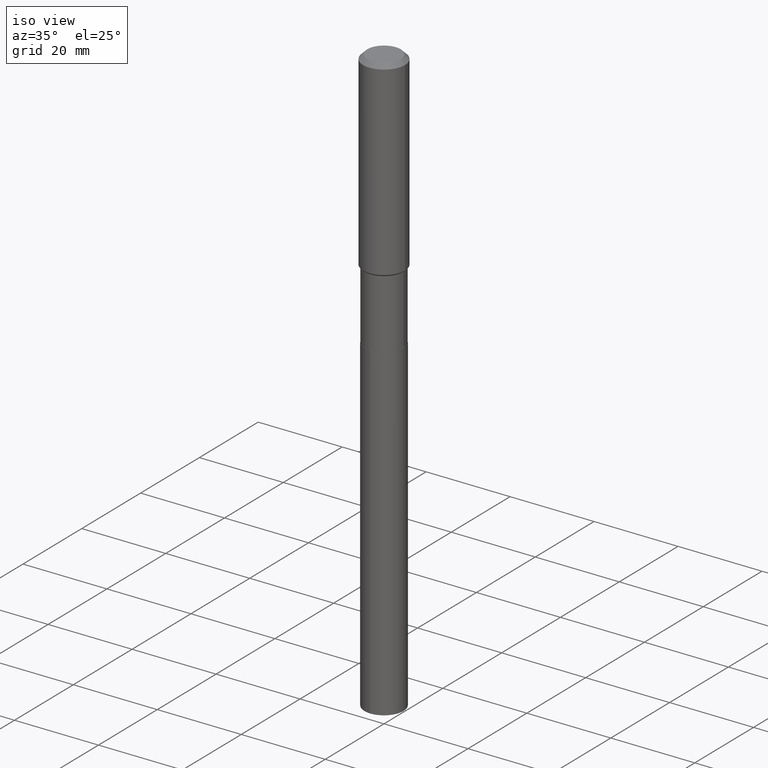
[diagram: clean part render]
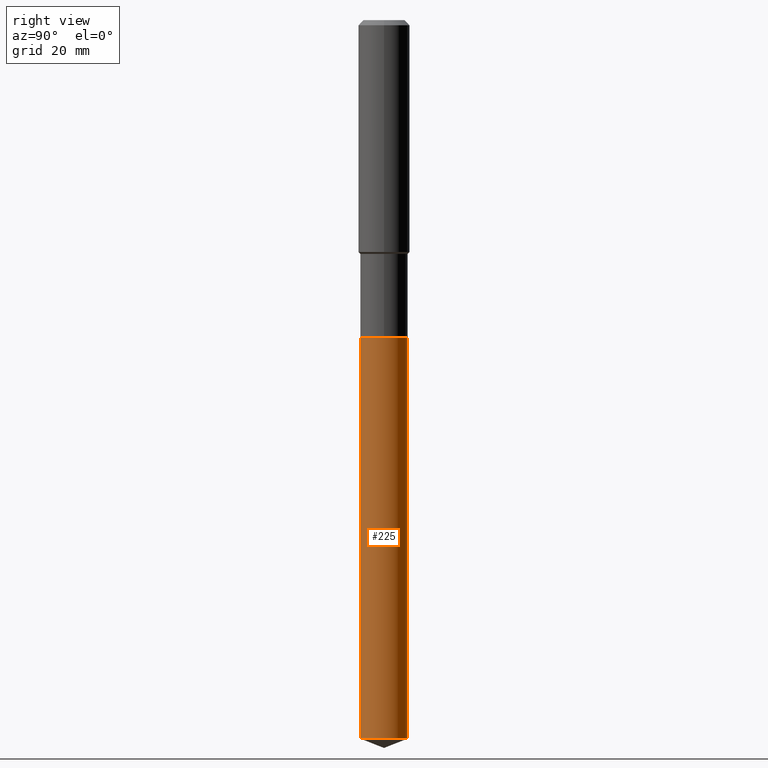
[diagram: tour spotlight — one face highlighted and labeled with its STEP entity id]
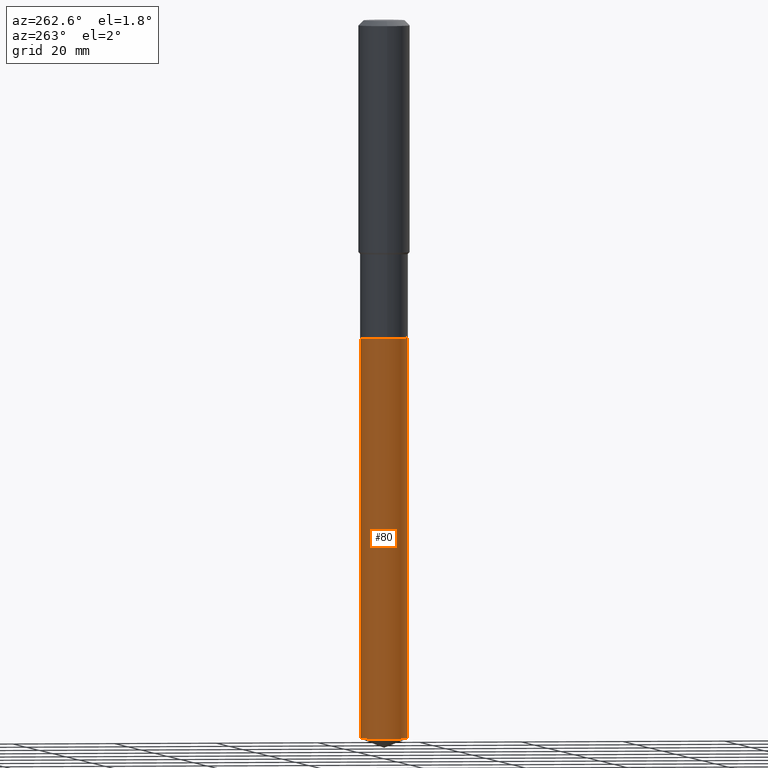
[diagram: tour spotlight — one face highlighted and labeled with its STEP entity id]
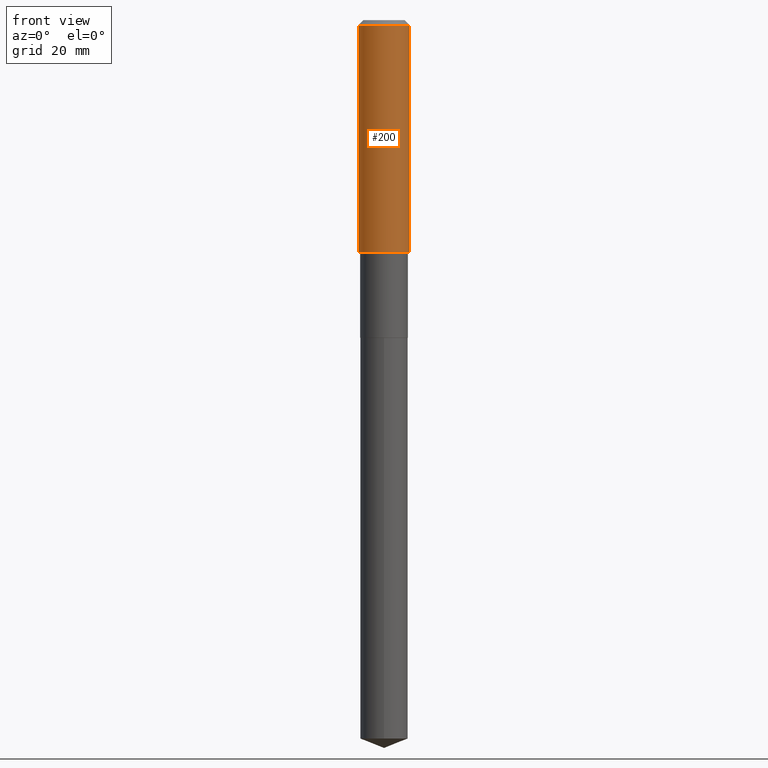
[diagram: tour spotlight — one face highlighted and labeled with its STEP entity id]
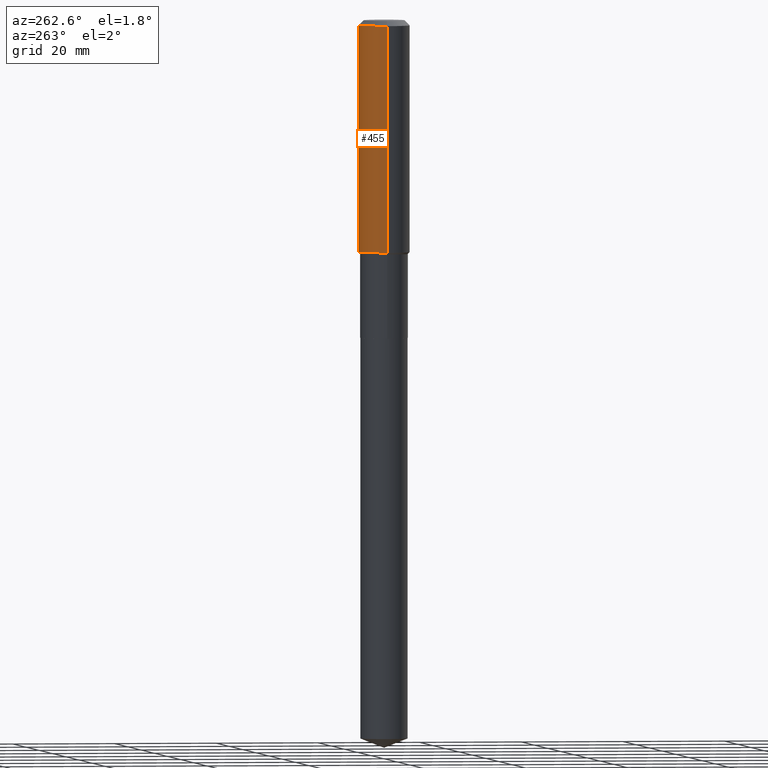
[diagram: tour spotlight — one face highlighted and labeled with its STEP entity id]
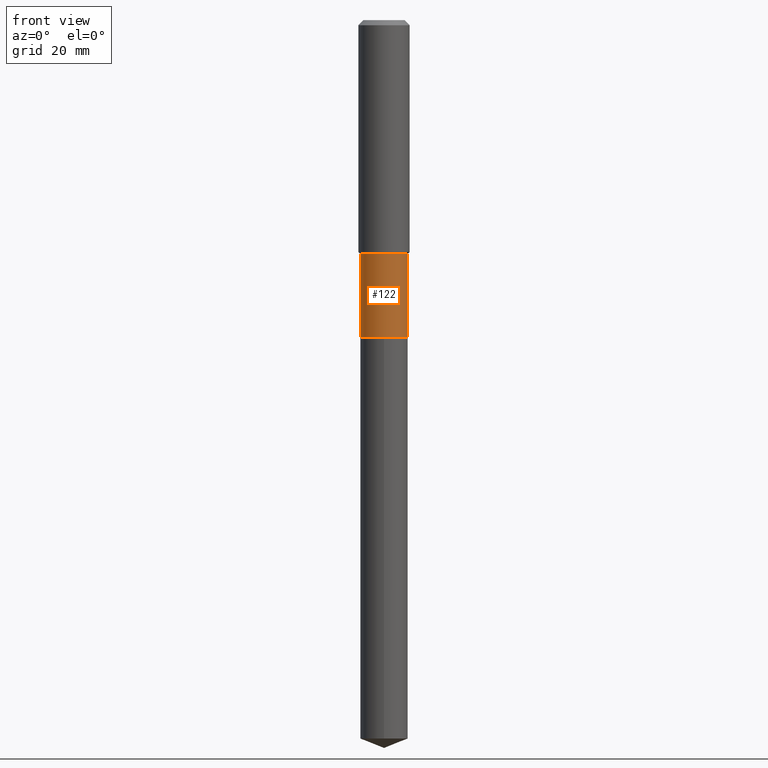
[diagram: tour spotlight — one face highlighted and labeled with its STEP entity id]
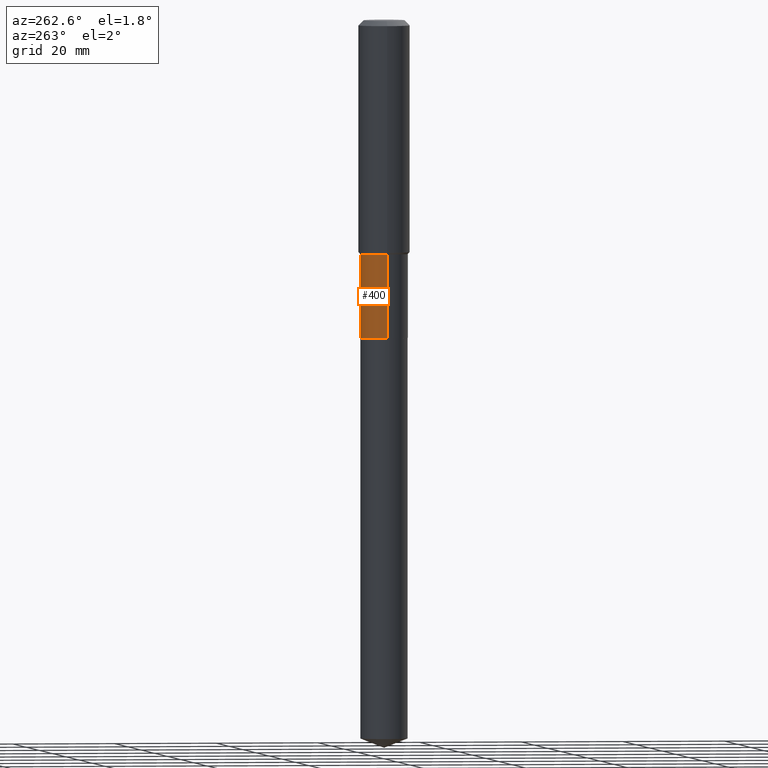
[diagram: tour spotlight — one face highlighted and labeled with its STEP entity id]
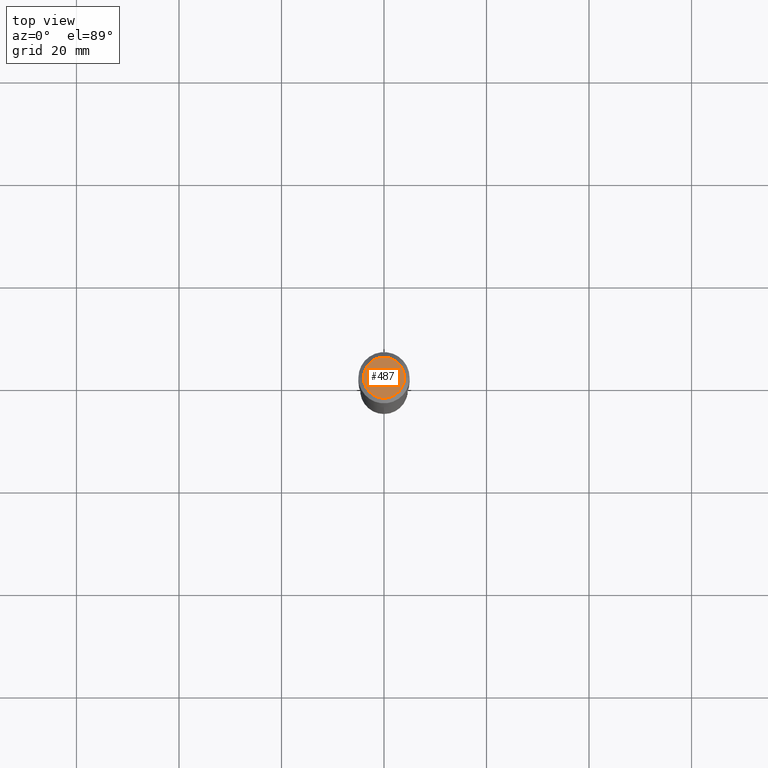
[diagram: tour spotlight — one face highlighted and labeled with its STEP entity id]
A machine part: a face-by-face anatomy tour. The part has 17 B-rep faces; the first image is the clean iso view, then the 7 largest visible faces are spotlighted one at a time (largest first), each with its STEP entity span.

Face 1 — right view, entity #225. In plain terms, the highlighted cylindrical surface (edge-blend (fillet) strip) has radius 4.6495 mm, axis along (-0, 0, 1).
Definition (entity closure, byte-faithful):
#10 = CARTESIAN_POINT ( 'NONE',  ( 1.300648477808922684E-15, 0.1830499999999914418, -2.440899999999999626 ) ) ;
#32 = VERTEX_POINT ( 'NONE', #277 ) ;
#46 = DIRECTION ( 'NONE',  ( -2.445428369358333970E-29, 3.491539246680648506E-15, 1.000000000000000000 ) ) ;
#70 = CARTESIAN_POINT ( 'NONE',  ( 1.300648477808998415E-15, 0.1830499999999914418, -2.440899999999999626 ) ) ;
#82 = ORIENTED_EDGE ( 'NONE', *, *, #261, .T. ) ;
#91 = EDGE_LOOP ( 'NONE', ( #82, #203, #302, #340 ) ) ;
#125 = VERTEX_POINT ( 'NONE', #136 ) ;
#131 = EDGE_CURVE ( 'NONE', #483, #32, #175, .T. ) ;
#136 = CARTESIAN_POINT ( 'NONE',  ( 1.300648477808998218E-15, 0.1830499999999807559, -5.518394687438686219 ) ) ;
#148 = DIRECTION ( 'NONE',  ( -2.445428369358333970E-29, 3.491539246680648506E-15, 1.000000000000000000 ) ) ;
#152 = LINE ( 'NONE', #10, #191 ) ;
#153 = VECTOR ( 'NONE', #479, 39.37007874015748143 ) ;
#175 = LINE ( 'NONE', #396, #153 ) ;
#191 = VECTOR ( 'NONE', #490, 39.37007874015748143 ) ;
#203 = ORIENTED_EDGE ( 'NONE', *, *, #426, .T. ) ;
#223 = AXIS2_PLACEMENT_3D ( 'NONE', #268, #148, #272 ) ;
#224 = CIRCLE ( 'NONE', #242, 0.1830499999999999905 ) ;
#225 = ADVANCED_FACE ( 'NONE', ( #413 ), #342, .T. ) ;
#233 = AXIS2_PLACEMENT_3D ( 'NONE', #421, #46, #278 ) ;
#242 = AXIS2_PLACEMENT_3D ( 'NONE', #351, #303, #344 ) ;
#246 = CARTESIAN_POINT ( 'NONE',  ( -1.278231318150335969E-15, -0.1830500000000192251, -5.518394687438683555 ) ) ;
#261 = EDGE_CURVE ( 'NONE', #483, #125, #414, .T. ) ;
#268 = CARTESIAN_POINT ( 'NONE',  ( 5.969144809017297917E-29, -8.522356799982231388E-15, -2.440899999999999181 ) ) ;
#272 = DIRECTION ( 'NONE',  ( -6.982962677686264344E-15, -1.000000000000000000, 2.984810700534567995E-15 ) ) ;
#277 = CARTESIAN_POINT ( 'NONE',  ( -1.278231318150411108E-15, -0.1830500000000085115, -2.440899999999998737 ) ) ;
#278 = DIRECTION ( 'NONE',  ( -6.982962677686264344E-15, -1.000000000000000000, 5.969621401069135991E-15 ) ) ;
#302 = ORIENTED_EDGE ( 'NONE', *, *, #424, .F. ) ;
#303 = DIRECTION ( 'NONE',  ( -2.445428369358333970E-29, 3.491539246680648506E-15, 1.000000000000000000 ) ) ;
#340 = ORIENTED_EDGE ( 'NONE', *, *, #131, .F. ) ;
#342 = CYLINDRICAL_SURFACE ( 'NONE', #223, 0.1830499999999999905 ) ;
#344 = DIRECTION ( 'NONE',  ( -6.982962677686264344E-15, -1.000000000000000000, 2.984810700534567995E-15 ) ) ;
#351 = CARTESIAN_POINT ( 'NONE',  ( 5.969144809017297917E-29, -8.522356799982231388E-15, -2.440899999999999181 ) ) ;
#383 = VERTEX_POINT ( 'NONE', #70 ) ;
#396 = CARTESIAN_POINT ( 'NONE',  ( -1.278231318150411108E-15, -0.1830500000000085115, -2.440899999999998737 ) ) ;
#413 = FACE_OUTER_BOUND ( 'NONE', #91, .T. ) ;
#414 = CIRCLE ( 'NONE', #233, 0.1830499999999999905 ) ;
#421 = CARTESIAN_POINT ( 'NONE',  ( 1.349493762422942033E-28, -1.926755028262559615E-14, -5.518394687438684443 ) ) ;
#424 = EDGE_CURVE ( 'NONE', #32, #383, #224, .T. ) ;
#426 = EDGE_CURVE ( 'NONE', #125, #383, #152, .T. ) ;
#479 = DIRECTION ( 'NONE',  ( -2.445428369358333970E-29, 3.491539246680648506E-15, 1.000000000000000000 ) ) ;
#483 = VERTEX_POINT ( 'NONE', #246 ) ;
#490 = DIRECTION ( 'NONE',  ( -2.445428369358333970E-29, 3.491539246680648506E-15, 1.000000000000000000 ) ) ;

Face 2 — auxiliary view, entity #80. In plain terms, the highlighted cylindrical surface (edge-blend (fillet) strip) has radius 4.6495 mm, axis along (-0, 0, 1).
Definition (entity closure, byte-faithful):
#10 = CARTESIAN_POINT ( 'NONE',  ( 1.300648477808922684E-15, 0.1830499999999914418, -2.440899999999999626 ) ) ;
#32 = VERTEX_POINT ( 'NONE', #277 ) ;
#35 = CARTESIAN_POINT ( 'NONE',  ( 5.969144809017297917E-29, -8.522356799982231388E-15, -2.440899999999999181 ) ) ;
#70 = CARTESIAN_POINT ( 'NONE',  ( 1.300648477808998415E-15, 0.1830499999999914418, -2.440899999999999626 ) ) ;
#72 = CIRCLE ( 'NONE', #214, 0.1830499999999999905 ) ;
#80 = ADVANCED_FACE ( 'NONE', ( #254 ), #101, .T. ) ;
#98 = AXIS2_PLACEMENT_3D ( 'NONE', #188, #341, #262 ) ;
#101 = CYLINDRICAL_SURFACE ( 'NONE', #326, 0.1830499999999999905 ) ;
#112 = DIRECTION ( 'NONE',  ( -2.445428369358333970E-29, 3.491539246680648506E-15, 1.000000000000000000 ) ) ;
#125 = VERTEX_POINT ( 'NONE', #136 ) ;
#131 = EDGE_CURVE ( 'NONE', #483, #32, #175, .T. ) ;
#134 = CARTESIAN_POINT ( 'NONE',  ( 5.969144809017297917E-29, -8.522356799982231388E-15, -2.440899999999999181 ) ) ;
#136 = CARTESIAN_POINT ( 'NONE',  ( 1.300648477808998218E-15, 0.1830499999999807559, -5.518394687438686219 ) ) ;
#152 = LINE ( 'NONE', #10, #191 ) ;
#153 = VECTOR ( 'NONE', #479, 39.37007874015748143 ) ;
#166 = ORIENTED_EDGE ( 'NONE', *, *, #131, .T. ) ;
#175 = LINE ( 'NONE', #396, #153 ) ;
#188 = CARTESIAN_POINT ( 'NONE',  ( 1.349493762422942033E-28, -1.926755028262559615E-14, -5.518394687438684443 ) ) ;
#191 = VECTOR ( 'NONE', #490, 39.37007874015748143 ) ;
#213 = DIRECTION ( 'NONE',  ( -2.445428369358333970E-29, 3.491539246680648506E-15, 1.000000000000000000 ) ) ;
#214 = AXIS2_PLACEMENT_3D ( 'NONE', #35, #112, #488 ) ;
#219 = EDGE_CURVE ( 'NONE', #383, #32, #72, .T. ) ;
#234 = EDGE_CURVE ( 'NONE', #125, #483, #464, .T. ) ;
#246 = CARTESIAN_POINT ( 'NONE',  ( -1.278231318150335969E-15, -0.1830500000000192251, -5.518394687438683555 ) ) ;
#254 = FACE_OUTER_BOUND ( 'NONE', #335, .T. ) ;
#262 = DIRECTION ( 'NONE',  ( -6.982962677686264344E-15, -1.000000000000000000, 5.969621401069135991E-15 ) ) ;
#277 = CARTESIAN_POINT ( 'NONE',  ( -1.278231318150411108E-15, -0.1830500000000085115, -2.440899999999998737 ) ) ;
#324 = DIRECTION ( 'NONE',  ( -6.982962677686264344E-15, -1.000000000000000000, 2.984810700534567995E-15 ) ) ;
#326 = AXIS2_PLACEMENT_3D ( 'NONE', #134, #213, #324 ) ;
#335 = EDGE_LOOP ( 'NONE', ( #360, #477, #166, #374 ) ) ;
#341 = DIRECTION ( 'NONE',  ( -2.445428369358333970E-29, 3.491539246680648506E-15, 1.000000000000000000 ) ) ;
#360 = ORIENTED_EDGE ( 'NONE', *, *, #426, .F. ) ;
#374 = ORIENTED_EDGE ( 'NONE', *, *, #219, .F. ) ;
#383 = VERTEX_POINT ( 'NONE', #70 ) ;
#396 = CARTESIAN_POINT ( 'NONE',  ( -1.278231318150411108E-15, -0.1830500000000085115, -2.440899999999998737 ) ) ;
#426 = EDGE_CURVE ( 'NONE', #125, #383, #152, .T. ) ;
#464 = CIRCLE ( 'NONE', #98, 0.1830499999999999905 ) ;
#477 = ORIENTED_EDGE ( 'NONE', *, *, #234, .T. ) ;
#479 = DIRECTION ( 'NONE',  ( -2.445428369358333970E-29, 3.491539246680648506E-15, 1.000000000000000000 ) ) ;
#483 = VERTEX_POINT ( 'NONE', #246 ) ;
#488 = DIRECTION ( 'NONE',  ( -6.982962677686264344E-15, -1.000000000000000000, 2.984810700534567995E-15 ) ) ;
#490 = DIRECTION ( 'NONE',  ( -2.445428369358333970E-29, 3.491539246680648506E-15, 1.000000000000000000 ) ) ;

Face 3 — front view, entity #200. In plain terms, the highlighted cylindrical surface (edge-blend (fillet) strip) has radius 5 mm, axis along (-0, 0, 1).
Definition (entity closure, byte-faithful):
#2 = EDGE_CURVE ( 'NONE', #48, #182, #49, .T. ) ;
#6 = CARTESIAN_POINT ( 'NONE',  ( 9.627810689950943645E-31, -1.374596203102555315E-16, -0.03937000000000024508 ) ) ;
#13 = ORIENTED_EDGE ( 'NONE', *, *, #307, .F. ) ;
#24 = EDGE_CURVE ( 'NONE', #407, #182, #165, .T. ) ;
#36 = DIRECTION ( 'NONE',  ( -2.445468806185136597E-29, 3.491481338843145583E-15, 1.000000000000000000 ) ) ;
#44 = AXIS2_PLACEMENT_3D ( 'NONE', #66, #36, #276 ) ;
#48 = VERTEX_POINT ( 'NONE', #469 ) ;
#49 = CIRCLE ( 'NONE', #71, 0.1968500000000000250 ) ;
#52 = ORIENTED_EDGE ( 'NONE', *, *, #248, .T. ) ;
#55 = FACE_OUTER_BOUND ( 'NONE', #325, .T. ) ;
#60 = ORIENTED_EDGE ( 'NONE', *, *, #24, .T. ) ;
#66 = CARTESIAN_POINT ( 'NONE',  ( 4.356847225099436385E-29, -6.220423153282944485E-15, -1.781599999999998740 ) ) ;
#71 = AXIS2_PLACEMENT_3D ( 'NONE', #6, #116, #275 ) ;
#94 = CARTESIAN_POINT ( 'NONE',  ( -0.1968500000000001082, 1.398703375343757985E-15, -9.682923725166787881E-30 ) ) ;
#114 = CARTESIAN_POINT ( 'NONE',  ( -0.1968500000000002192, -4.821719777939185909E-15, -1.781599999999998740 ) ) ;
#116 = DIRECTION ( 'NONE',  ( -2.445468806185136597E-29, 3.491481338843145583E-15, 1.000000000000000000 ) ) ;
#165 = LINE ( 'NONE', #425, #185 ) ;
#182 = VERTEX_POINT ( 'NONE', #482 ) ;
#185 = VECTOR ( 'NONE', #350, 39.37007874015748143 ) ;
#200 = ADVANCED_FACE ( 'NONE', ( #55 ), #448, .T. ) ;
#248 = EDGE_CURVE ( 'NONE', #437, #407, #489, .T. ) ;
#275 = DIRECTION ( 'NONE',  ( 1.000000000000000000, -6.982962677686265922E-15, 0.000000000000000000 ) ) ;
#276 = DIRECTION ( 'NONE',  ( 1.000000000000000000, -6.982962677686265922E-15, 0.000000000000000000 ) ) ;
#282 = ORIENTED_EDGE ( 'NONE', *, *, #2, .F. ) ;
#307 = EDGE_CURVE ( 'NONE', #437, #48, #331, .T. ) ;
#309 = DIRECTION ( 'NONE',  ( 1.000000000000000000, -6.982962677686266711E-15, 4.876176775795935793E-29 ) ) ;
#325 = EDGE_LOOP ( 'NONE', ( #13, #52, #60, #282 ) ) ;
#331 = LINE ( 'NONE', #94, #392 ) ;
#350 = DIRECTION ( 'NONE',  ( -2.445468806185136877E-29, 3.491481338843145188E-15, 1.000000000000000000 ) ) ;
#386 = CARTESIAN_POINT ( 'NONE',  ( 0.1968500000000002192, -7.595019356385486094E-15, -1.781599999999998740 ) ) ;
#392 = VECTOR ( 'NONE', #430, 39.37007874015748143 ) ;
#407 = VERTEX_POINT ( 'NONE', #386 ) ;
#412 = CARTESIAN_POINT ( 'NONE',  ( 0.000000000000000000, 0.000000000000000000, 0.000000000000000000 ) ) ;
#425 = CARTESIAN_POINT ( 'NONE',  ( 0.1968500000000001082, -1.374596203102542397E-15, 9.598753983154305062E-30 ) ) ;
#430 = DIRECTION ( 'NONE',  ( -2.445468806185136877E-29, 3.491481338843145188E-15, 1.000000000000000000 ) ) ;
#437 = VERTEX_POINT ( 'NONE', #114 ) ;
#448 = CYLINDRICAL_SURFACE ( 'NONE', #450, 0.1968500000000001082 ) ;
#450 = AXIS2_PLACEMENT_3D ( 'NONE', #412, #454, #309 ) ;
#454 = DIRECTION ( 'NONE',  ( -2.445468806185136597E-29, 3.491481338843145583E-15, 1.000000000000000000 ) ) ;
#469 = CARTESIAN_POINT ( 'NONE',  ( -0.1968500000000000250, -1.780238011452841457E-15, -0.03937000000000024508 ) ) ;
#482 = CARTESIAN_POINT ( 'NONE',  ( 0.1968500000000000250, -1.512055823412797189E-15, -0.03937000000000024508 ) ) ;
#489 = CIRCLE ( 'NONE', #44, 0.1968500000000002192 ) ;

Face 4 — auxiliary view, entity #455. In plain terms, the highlighted cylindrical surface (edge-blend (fillet) strip) has radius 5 mm, axis along (-0, 0, 1).
Definition (entity closure, byte-faithful):
#24 = EDGE_CURVE ( 'NONE', #407, #182, #165, .T. ) ;
#34 = CIRCLE ( 'NONE', #345, 0.1968500000000000250 ) ;
#41 = CARTESIAN_POINT ( 'NONE',  ( 9.627810689950943645E-31, -1.374596203102555315E-16, -0.03937000000000024508 ) ) ;
#48 = VERTEX_POINT ( 'NONE', #469 ) ;
#67 = EDGE_LOOP ( 'NONE', ( #354, #370, #210, #471 ) ) ;
#94 = CARTESIAN_POINT ( 'NONE',  ( -0.1968500000000001082, 1.398703375343757985E-15, -9.682923725166787881E-30 ) ) ;
#114 = CARTESIAN_POINT ( 'NONE',  ( -0.1968500000000002192, -4.821719777939185909E-15, -1.781599999999998740 ) ) ;
#117 = DIRECTION ( 'NONE',  ( -2.445468806185136597E-29, 3.491481338843145583E-15, 1.000000000000000000 ) ) ;
#147 = AXIS2_PLACEMENT_3D ( 'NONE', #313, #117, #453 ) ;
#157 = CYLINDRICAL_SURFACE ( 'NONE', #147, 0.1968500000000001082 ) ;
#161 = CIRCLE ( 'NONE', #228, 0.1968500000000002192 ) ;
#165 = LINE ( 'NONE', #425, #185 ) ;
#174 = CARTESIAN_POINT ( 'NONE',  ( 4.356847225099436385E-29, -6.220423153282944485E-15, -1.781599999999998740 ) ) ;
#182 = VERTEX_POINT ( 'NONE', #482 ) ;
#185 = VECTOR ( 'NONE', #350, 39.37007874015748143 ) ;
#193 = DIRECTION ( 'NONE',  ( -2.445468806185136597E-29, 3.491481338843145583E-15, 1.000000000000000000 ) ) ;
#195 = FACE_OUTER_BOUND ( 'NONE', #67, .T. ) ;
#210 = ORIENTED_EDGE ( 'NONE', *, *, #411, .F. ) ;
#228 = AXIS2_PLACEMENT_3D ( 'NONE', #174, #478, #333 ) ;
#274 = DIRECTION ( 'NONE',  ( 1.000000000000000000, -6.982962677686265922E-15, 0.000000000000000000 ) ) ;
#307 = EDGE_CURVE ( 'NONE', #437, #48, #331, .T. ) ;
#313 = CARTESIAN_POINT ( 'NONE',  ( 0.000000000000000000, 0.000000000000000000, 0.000000000000000000 ) ) ;
#331 = LINE ( 'NONE', #94, #392 ) ;
#333 = DIRECTION ( 'NONE',  ( 1.000000000000000000, -6.982962677686265922E-15, 0.000000000000000000 ) ) ;
#345 = AXIS2_PLACEMENT_3D ( 'NONE', #41, #193, #274 ) ;
#346 = EDGE_CURVE ( 'NONE', #407, #437, #161, .T. ) ;
#350 = DIRECTION ( 'NONE',  ( -2.445468806185136877E-29, 3.491481338843145188E-15, 1.000000000000000000 ) ) ;
#354 = ORIENTED_EDGE ( 'NONE', *, *, #346, .T. ) ;
#370 = ORIENTED_EDGE ( 'NONE', *, *, #307, .T. ) ;
#386 = CARTESIAN_POINT ( 'NONE',  ( 0.1968500000000002192, -7.595019356385486094E-15, -1.781599999999998740 ) ) ;
#392 = VECTOR ( 'NONE', #430, 39.37007874015748143 ) ;
#407 = VERTEX_POINT ( 'NONE', #386 ) ;
#411 = EDGE_CURVE ( 'NONE', #182, #48, #34, .T. ) ;
#425 = CARTESIAN_POINT ( 'NONE',  ( 0.1968500000000001082, -1.374596203102542397E-15, 9.598753983154305062E-30 ) ) ;
#430 = DIRECTION ( 'NONE',  ( -2.445468806185136877E-29, 3.491481338843145188E-15, 1.000000000000000000 ) ) ;
#437 = VERTEX_POINT ( 'NONE', #114 ) ;
#453 = DIRECTION ( 'NONE',  ( 1.000000000000000000, -6.982962677686266711E-15, 4.876176775795935793E-29 ) ) ;
#455 = ADVANCED_FACE ( 'NONE', ( #195 ), #157, .T. ) ;
#469 = CARTESIAN_POINT ( 'NONE',  ( -0.1968500000000000250, -1.780238011452841457E-15, -0.03937000000000024508 ) ) ;
#471 = ORIENTED_EDGE ( 'NONE', *, *, #24, .F. ) ;
#478 = DIRECTION ( 'NONE',  ( -2.445468806185136597E-29, 3.491481338843145583E-15, 1.000000000000000000 ) ) ;
#482 = CARTESIAN_POINT ( 'NONE',  ( 0.1968500000000000250, -1.512055823412797189E-15, -0.03937000000000024508 ) ) ;

Face 5 — front view, entity #122. In plain terms, the highlighted cylindrical surface (edge-blend (fillet) strip) has radius 4.6495 mm, axis along (-0, 0, 1).
Definition (entity closure, byte-faithful):
#5 = AXIS2_PLACEMENT_3D ( 'NONE', #399, #218, #180 ) ;
#27 = FACE_OUTER_BOUND ( 'NONE', #273, .T. ) ;
#40 = EDGE_CURVE ( 'NONE', #323, #42, #466, .T. ) ;
#42 = VERTEX_POINT ( 'NONE', #283 ) ;
#43 = DIRECTION ( 'NONE',  ( 1.000000000000000000, -6.982962677686265922E-15, 0.000000000000000000 ) ) ;
#56 = EDGE_CURVE ( 'NONE', #460, #187, #259, .T. ) ;
#63 = DIRECTION ( 'NONE',  ( 1.000000000000000000, -6.982962677686266711E-15, 4.876176775795936353E-29 ) ) ;
#65 = AXIS2_PLACEMENT_3D ( 'NONE', #192, #384, #43 ) ;
#88 = CIRCLE ( 'NONE', #65, 0.1830499999999999905 ) ;
#110 = CARTESIAN_POINT ( 'NONE',  ( 0.1830499999999999905, -9.798842377463280551E-15, -2.440399999999999014 ) ) ;
#122 = ADVANCED_FACE ( 'NONE', ( #27 ), #300, .T. ) ;
#123 = CARTESIAN_POINT ( 'NONE',  ( -0.1830499999999999350, 1.300648477808862928E-15, -9.004110682711602587E-30 ) ) ;
#164 = ORIENTED_EDGE ( 'NONE', *, *, #446, .T. ) ;
#178 = ORIENTED_EDGE ( 'NONE', *, *, #56, .T. ) ;
#180 = DIRECTION ( 'NONE',  ( 1.000000000000000000, -6.982962677686263555E-15, 0.000000000000000000 ) ) ;
#181 = EDGE_CURVE ( 'NONE', #42, #187, #458, .T. ) ;
#186 = AXIS2_PLACEMENT_3D ( 'NONE', #245, #327, #63 ) ;
#187 = VERTEX_POINT ( 'NONE', #361 ) ;
#192 = CARTESIAN_POINT ( 'NONE',  ( 5.967922074614205116E-29, -8.520611059312809095E-15, -2.440399999999999014 ) ) ;
#196 = VECTOR ( 'NONE', #222, 39.37007874015748143 ) ;
#218 = DIRECTION ( 'NONE',  ( -2.445468806185136597E-29, 3.491481338843145583E-15, 1.000000000000000000 ) ) ;
#222 = DIRECTION ( 'NONE',  ( -2.445468806185136877E-29, 3.491481338843145188E-15, 1.000000000000000000 ) ) ;
#231 = DIRECTION ( 'NONE',  ( -2.445468806185136877E-29, 3.491481338843145188E-15, 1.000000000000000000 ) ) ;
#244 = ORIENTED_EDGE ( 'NONE', *, *, #40, .F. ) ;
#245 = CARTESIAN_POINT ( 'NONE',  ( 0.000000000000000000, 0.000000000000000000, 0.000000000000000000 ) ) ;
#259 = LINE ( 'NONE', #334, #196 ) ;
#273 = EDGE_LOOP ( 'NONE', ( #244, #164, #178, #330 ) ) ;
#283 = CARTESIAN_POINT ( 'NONE',  ( -0.1830499999999999072, -6.093959849727030611E-15, -1.795399999999998997 ) ) ;
#300 = CYLINDRICAL_SURFACE ( 'NONE', #186, 0.1830499999999999350 ) ;
#323 = VERTEX_POINT ( 'NONE', #371 ) ;
#327 = DIRECTION ( 'NONE',  ( -2.445468806185136597E-29, 3.491481338843145583E-15, 1.000000000000000000 ) ) ;
#330 = ORIENTED_EDGE ( 'NONE', *, *, #181, .F. ) ;
#334 = CARTESIAN_POINT ( 'NONE',  ( 0.1830499999999999350, -1.278231318150470667E-15, 8.925841588094458053E-30 ) ) ;
#361 = CARTESIAN_POINT ( 'NONE',  ( 0.1830499999999999072, -7.546836913909449440E-15, -1.795399999999998997 ) ) ;
#371 = CARTESIAN_POINT ( 'NONE',  ( -0.1830499999999999905, -6.093959849727030611E-15, -2.440399999999999014 ) ) ;
#384 = DIRECTION ( 'NONE',  ( -2.445468806185136597E-29, 3.491481338843145583E-15, 1.000000000000000000 ) ) ;
#399 = CARTESIAN_POINT ( 'NONE',  ( 4.390594694624792213E-29, -6.268605595758980350E-15, -1.795399999999998997 ) ) ;
#446 = EDGE_CURVE ( 'NONE', #323, #460, #88, .T. ) ;
#457 = VECTOR ( 'NONE', #231, 39.37007874015748143 ) ;
#458 = CIRCLE ( 'NONE', #5, 0.1830499999999999072 ) ;
#460 = VERTEX_POINT ( 'NONE', #110 ) ;
#466 = LINE ( 'NONE', #123, #457 ) ;

Face 6 — auxiliary view, entity #400. In plain terms, the highlighted cylindrical surface (edge-blend (fillet) strip) has radius 4.6495 mm, axis along (-0, 0, 1).
Definition (entity closure, byte-faithful):
#3 = DIRECTION ( 'NONE',  ( -2.445468806185136597E-29, 3.491481338843145583E-15, 1.000000000000000000 ) ) ;
#31 = DIRECTION ( 'NONE',  ( -2.445468806185136597E-29, 3.491481338843145583E-15, 1.000000000000000000 ) ) ;
#37 = EDGE_LOOP ( 'NONE', ( #379, #194, #137, #106 ) ) ;
#40 = EDGE_CURVE ( 'NONE', #323, #42, #466, .T. ) ;
#42 = VERTEX_POINT ( 'NONE', #283 ) ;
#45 = DIRECTION ( 'NONE',  ( 1.000000000000000000, -6.982962677686265922E-15, 0.000000000000000000 ) ) ;
#56 = EDGE_CURVE ( 'NONE', #460, #187, #259, .T. ) ;
#106 = ORIENTED_EDGE ( 'NONE', *, *, #56, .F. ) ;
#110 = CARTESIAN_POINT ( 'NONE',  ( 0.1830499999999999905, -9.798842377463280551E-15, -2.440399999999999014 ) ) ;
#123 = CARTESIAN_POINT ( 'NONE',  ( -0.1830499999999999350, 1.300648477808862928E-15, -9.004110682711602587E-30 ) ) ;
#137 = ORIENTED_EDGE ( 'NONE', *, *, #160, .F. ) ;
#154 = AXIS2_PLACEMENT_3D ( 'NONE', #232, #381, #199 ) ;
#160 = EDGE_CURVE ( 'NONE', #187, #42, #403, .T. ) ;
#162 = CIRCLE ( 'NONE', #378, 0.1830499999999999905 ) ;
#184 = DIRECTION ( 'NONE',  ( 1.000000000000000000, -6.982962677686263555E-15, 0.000000000000000000 ) ) ;
#187 = VERTEX_POINT ( 'NONE', #361 ) ;
#194 = ORIENTED_EDGE ( 'NONE', *, *, #40, .T. ) ;
#196 = VECTOR ( 'NONE', #222, 39.37007874015748143 ) ;
#199 = DIRECTION ( 'NONE',  ( 1.000000000000000000, -6.982962677686266711E-15, 4.876176775795936353E-29 ) ) ;
#211 = CARTESIAN_POINT ( 'NONE',  ( 4.390594694624792213E-29, -6.268605595758980350E-15, -1.795399999999998997 ) ) ;
#222 = DIRECTION ( 'NONE',  ( -2.445468806185136877E-29, 3.491481338843145188E-15, 1.000000000000000000 ) ) ;
#227 = CYLINDRICAL_SURFACE ( 'NONE', #154, 0.1830499999999999350 ) ;
#231 = DIRECTION ( 'NONE',  ( -2.445468806185136877E-29, 3.491481338843145188E-15, 1.000000000000000000 ) ) ;
#232 = CARTESIAN_POINT ( 'NONE',  ( 0.000000000000000000, 0.000000000000000000, 0.000000000000000000 ) ) ;
#259 = LINE ( 'NONE', #334, #196 ) ;
#283 = CARTESIAN_POINT ( 'NONE',  ( -0.1830499999999999072, -6.093959849727030611E-15, -1.795399999999998997 ) ) ;
#323 = VERTEX_POINT ( 'NONE', #371 ) ;
#334 = CARTESIAN_POINT ( 'NONE',  ( 0.1830499999999999350, -1.278231318150470667E-15, 8.925841588094458053E-30 ) ) ;
#337 = AXIS2_PLACEMENT_3D ( 'NONE', #211, #31, #184 ) ;
#361 = CARTESIAN_POINT ( 'NONE',  ( 0.1830499999999999072, -7.546836913909449440E-15, -1.795399999999998997 ) ) ;
#371 = CARTESIAN_POINT ( 'NONE',  ( -0.1830499999999999905, -6.093959849727030611E-15, -2.440399999999999014 ) ) ;
#378 = AXIS2_PLACEMENT_3D ( 'NONE', #420, #3, #45 ) ;
#379 = ORIENTED_EDGE ( 'NONE', *, *, #415, .T. ) ;
#381 = DIRECTION ( 'NONE',  ( -2.445468806185136597E-29, 3.491481338843145583E-15, 1.000000000000000000 ) ) ;
#400 = ADVANCED_FACE ( 'NONE', ( #459 ), #227, .T. ) ;
#403 = CIRCLE ( 'NONE', #337, 0.1830499999999999072 ) ;
#415 = EDGE_CURVE ( 'NONE', #460, #323, #162, .T. ) ;
#420 = CARTESIAN_POINT ( 'NONE',  ( 5.967922074614205116E-29, -8.520611059312809095E-15, -2.440399999999999014 ) ) ;
#457 = VECTOR ( 'NONE', #231, 39.37007874015748143 ) ;
#459 = FACE_OUTER_BOUND ( 'NONE', #37, .T. ) ;
#460 = VERTEX_POINT ( 'NONE', #110 ) ;
#466 = LINE ( 'NONE', #123, #457 ) ;

Face 7 — top view, entity #487. In plain terms, the highlighted planar face has unit normal (0, -0, -1).
Definition (entity closure, byte-faithful):
#4 = ORIENTED_EDGE ( 'NONE', *, *, #108, .T. ) ;
#12 = DIRECTION ( 'NONE',  ( 2.438088387897960049E-29, -3.491481338843145188E-15, -1.000000000000000000 ) ) ;
#54 = VERTEX_POINT ( 'NONE', #286 ) ;
#75 = DIRECTION ( 'NONE',  ( 1.000000000000000000, -6.982962677686265922E-15, 4.876223630392693006E-29 ) ) ;
#105 = AXIS2_PLACEMENT_3D ( 'NONE', #167, #336, #358 ) ;
#108 = EDGE_CURVE ( 'NONE', #54, #419, #343, .T. ) ;
#132 = ORIENTED_EDGE ( 'NONE', *, *, #355, .T. ) ;
#138 = DIRECTION ( 'NONE',  ( -2.445468806185136597E-29, 3.491481338843145583E-15, 1.000000000000000000 ) ) ;
#167 = CARTESIAN_POINT ( 'NONE',  ( -9.427742298522567634E-47, 1.346031739168368355E-32, 3.855188123715870730E-18 ) ) ;
#168 = CARTESIAN_POINT ( 'NONE',  ( -4.713871149261283817E-47, 6.730158695841841775E-33, 1.927594061857935365E-18 ) ) ;
#190 = CARTESIAN_POINT ( 'NONE',  ( 0.1574800000000000089, -1.284169937930321189E-15, 3.855188123724205385E-18 ) ) ;
#198 = AXIS2_PLACEMENT_3D ( 'NONE', #168, #12, #397 ) ;
#217 = EDGE_LOOP ( 'NONE', ( #4, #132 ) ) ;
#286 = CARTESIAN_POINT ( 'NONE',  ( -0.1574800000000000089, 1.168406772637159618E-15, 3.855188123707939751E-18 ) ) ;
#301 = AXIS2_PLACEMENT_3D ( 'NONE', #481, #138, #75 ) ;
#336 = DIRECTION ( 'NONE',  ( -2.445468806185136597E-29, 3.491481338843145583E-15, 1.000000000000000000 ) ) ;
#343 = CIRCLE ( 'NONE', #105, 0.1574800000000000089 ) ;
#353 = CIRCLE ( 'NONE', #301, 0.1574800000000000089 ) ;
#355 = EDGE_CURVE ( 'NONE', #419, #54, #353, .T. ) ;
#358 = DIRECTION ( 'NONE',  ( 1.000000000000000000, -6.982962677686265922E-15, 4.876223630392693006E-29 ) ) ;
#397 = DIRECTION ( 'NONE',  ( -1.000000000000000000, 6.982962677686265922E-15, -4.876176775795935793E-29 ) ) ;
#419 = VERTEX_POINT ( 'NONE', #190 ) ;
#427 = FACE_OUTER_BOUND ( 'NONE', #217, .T. ) ;
#467 = PLANE ( 'NONE',  #198 ) ;
#481 = CARTESIAN_POINT ( 'NONE',  ( -9.427742298522567634E-47, 1.346031739168368355E-32, 3.855188123715870730E-18 ) ) ;
#487 = ADVANCED_FACE ( 'NONE', ( #427 ), #467, .F. ) ;